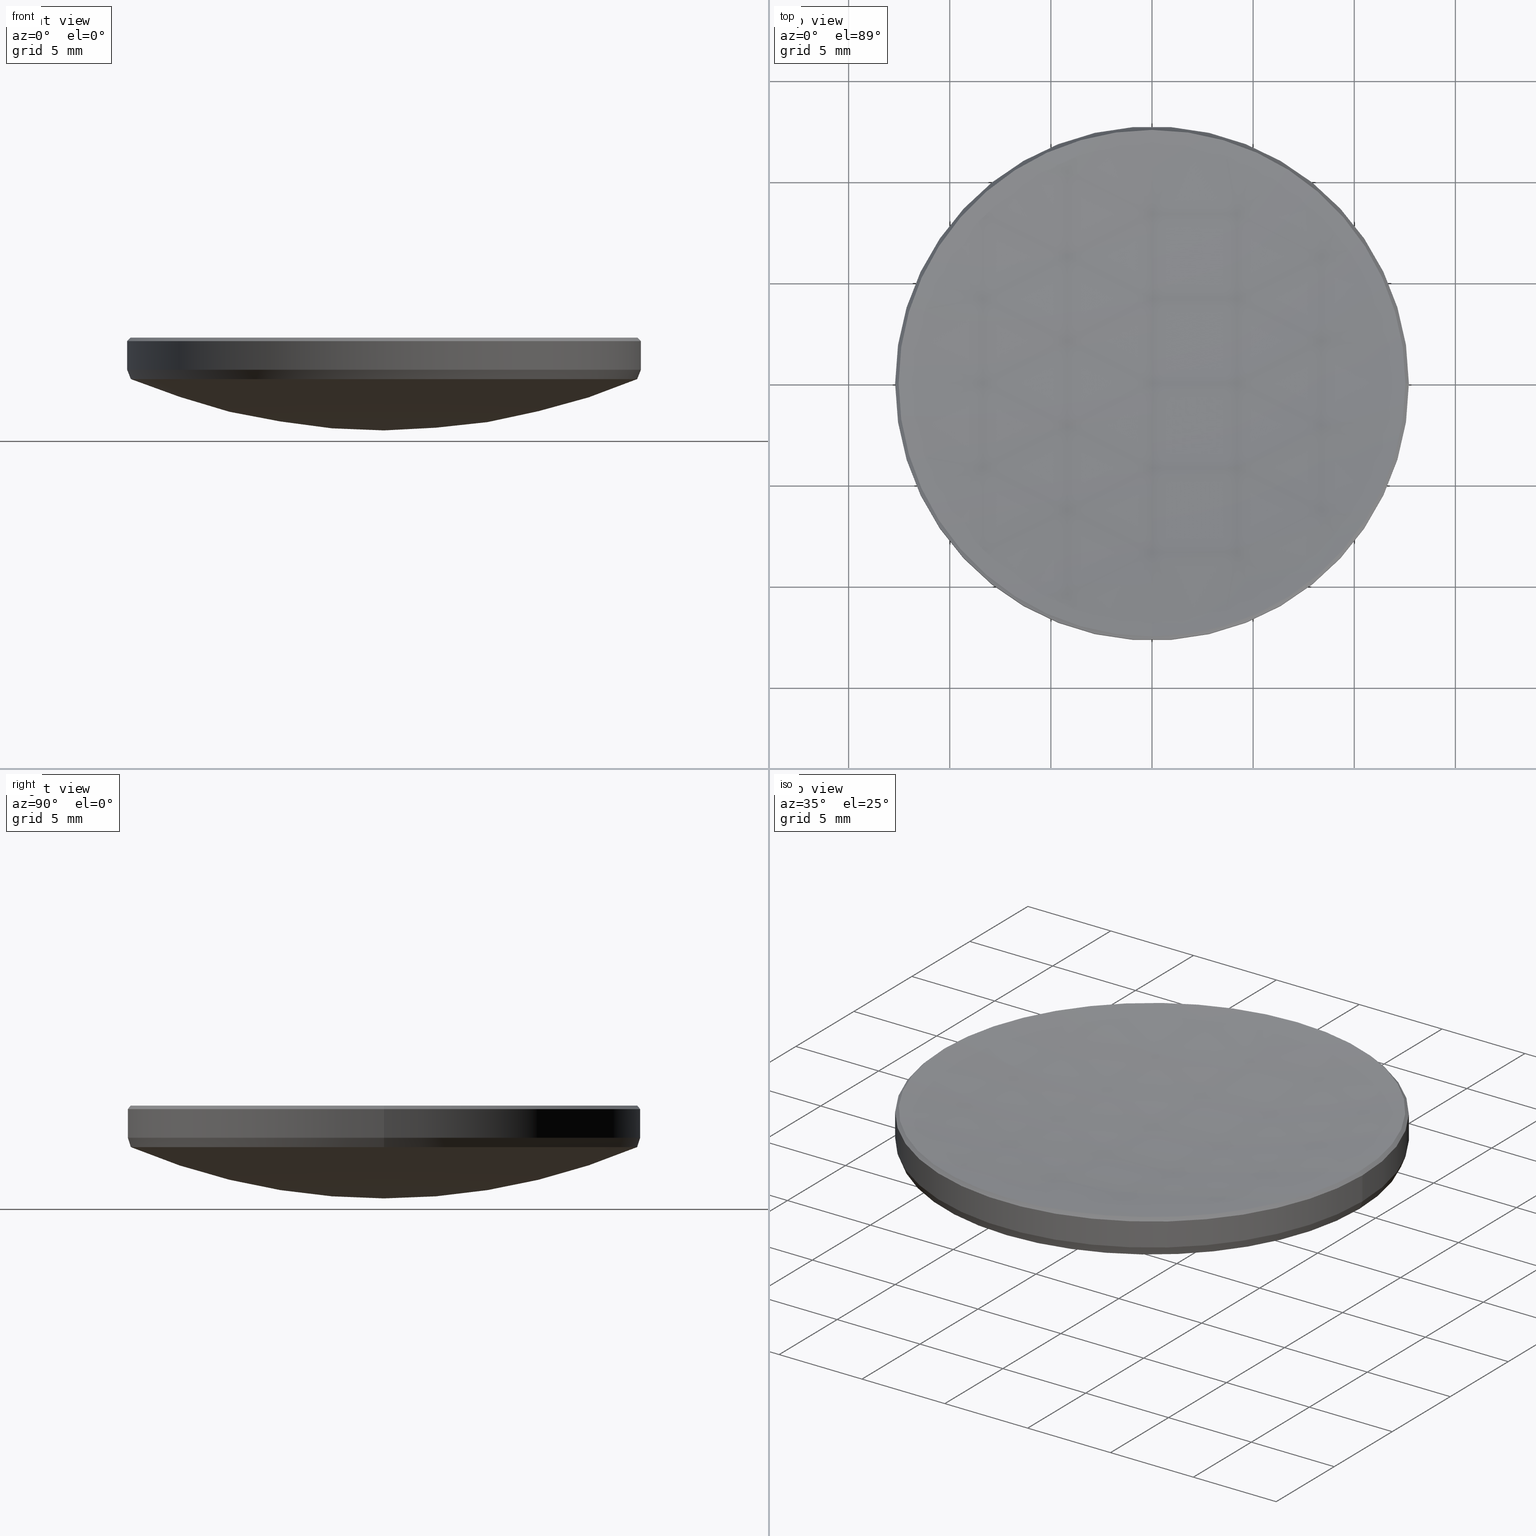
[diagram: canonical four-view strip — front | top / right | iso, engineering-drawing reading convention]
A machine part, canonical four-view strip (front | top / right | iso — engineering-drawing reading convention). The complete STEP part file that produces these views, byte-faithful:
ISO-10303-21;
HEADER;
FILE_DESCRIPTION (( 'STEP AP214' ),
    '1' );
FILE_NAME ('GLM1-025B-100-VIS.STEP',
    '2024-08-09T01:59:29',
    ( 'Windows User' ),
    ( 'P R C' ),
    'SwSTEP 2.0',
    'SolidWorks 2022',
    '' );
FILE_SCHEMA (( 'AUTOMOTIVE_DESIGN' ));
ENDSEC;

DATA;
#1 = PRESENTATION_STYLE_ASSIGNMENT (( #318 ) ) ;
#2 = CONICAL_SURFACE ( 'NONE', #119, 12.52687420083785597, 0.7853981633974733700 ) ;
#3 = ORIENTED_EDGE ( 'NONE', *, *, #284, .F. ) ;
#4 = DIRECTION ( 'NONE',  ( 0.000000000000000000, 0.000000000000000000, -1.000000000000000000 ) ) ;
#5 = EDGE_LOOP ( 'NONE', ( #286, #229, #84, #103 ) ) ;
#6 = FACE_OUTER_BOUND ( 'NONE', #126, .T. ) ;
#7 = ORIENTED_EDGE ( 'NONE', *, *, #240, .F. ) ;
#8 = AXIS2_PLACEMENT_3D ( 'NONE', #27, #166, #263 ) ;
#9 = DIRECTION ( 'NONE',  ( -0.000000000000000000, -0.000000000000000000, -1.000000000000000000 ) ) ;
#10 = CARTESIAN_POINT ( 'NONE',  ( 0.000000000000000000, 0.000000000000000000, 5.799999999999999822 ) ) ;
#11 = EDGE_CURVE ( 'NONE', #24, #77, #90, .T. ) ;
#12 = CIRCLE ( 'NONE', #194, 12.51660009051966682 ) ;
#13 = CARTESIAN_POINT ( 'NONE',  ( 0.000000000000000000, 12.52687420083781511, 5.973125799162120941 ) ) ;
#14 = DIRECTION ( 'NONE',  ( -0.000000000000000000, -0.000000000000000000, 1.000000000000000000 ) ) ;
#15 = ORIENTED_EDGE ( 'NONE', *, *, #195, .T. ) ;
#16 = COLOUR_RGB ( '',1.000000000000000000, 1.000000000000000000, 1.000000000000000000 ) ;
#17 = AXIS2_PLACEMENT_3D ( 'NONE', #66, #210, #193 ) ;
#18 = ORIENTED_EDGE ( 'NONE', *, *, #104, .T. ) ;
#19 = CARTESIAN_POINT ( 'NONE',  ( 0.000000000000000000, 0.000000000000000000, 3.921783238787050596 ) ) ;
#20 = SPHERICAL_SURFACE ( 'NONE', #118, 82.22999999999998977 ) ;
#21 =( NAMED_UNIT ( * ) PLANE_ANGLE_UNIT ( ) SI_UNIT ( $, .RADIAN. ) );
#22 = ORIENTED_EDGE ( 'NONE', *, *, #240, .T. ) ;
#23 = CARTESIAN_POINT ( 'NONE',  ( -12.69999999999999929, 1.555301434917138433E-15, 4.382064373895533826 ) ) ;
#24 = VERTEX_POINT ( 'NONE', #143 ) ;
#25 = DIRECTION ( 'NONE',  ( 1.000000000000000000, 0.000000000000000000, 0.000000000000000000 ) ) ;
#26 = ORIENTED_EDGE ( 'NONE', *, *, #272, .F. ) ;
#27 = CARTESIAN_POINT ( 'NONE',  ( 0.000000000000000000, 0.000000000000000000, 4.382064373895533826 ) ) ;
#28 = CIRCLE ( 'NONE', #213, 12.69999999999999929 ) ;
#29 = ORIENTED_EDGE ( 'NONE', *, *, #327, .F. ) ;
#30 = CARTESIAN_POINT ( 'NONE',  ( 0.000000000000000000, 0.000000000000000000, 3.921783238787050596 ) ) ;
#31 = ORIENTED_EDGE ( 'NONE', *, *, #172, .F. ) ;
#32 = AXIS2_PLACEMENT_3D ( 'NONE', #19, #198, #25 ) ;
#33 = CARTESIAN_POINT ( 'NONE',  ( -12.52687420083785419, 0.000000000000000000, 5.973125799162120941 ) ) ;
#34 = CARTESIAN_POINT ( 'NONE',  ( 0.000000000000000000, 5.035135314694341706E-15, 5.013356036047661668 ) ) ;
#35 = DIRECTION ( 'NONE',  ( 1.000000000000000000, 0.000000000000000000, 0.000000000000000000 ) ) ;
#36 = CIRCLE ( 'NONE', #219, 12.51660009051966682 ) ;
#37 = SHAPE_DEFINITION_REPRESENTATION ( #302, #314 ) ;
#38 = FACE_OUTER_BOUND ( 'NONE', #257, .T. ) ;
#39 = PRODUCT_RELATED_PRODUCT_CATEGORY ( 'part', '', ( #107 ) ) ;
#40 = FACE_OUTER_BOUND ( 'NONE', #159, .T. ) ;
#41 = EDGE_LOOP ( 'NONE', ( #82, #53, #59, #161 ) ) ;
#42 = STYLED_ITEM ( 'NONE', ( #250 ), #142 ) ;
#43 = CARTESIAN_POINT ( 'NONE',  ( -1.534099639337759046E-15, -12.52687420083781511, 5.973125799162120941 ) ) ;
#44 = EDGE_CURVE ( 'NONE', #106, #180, #171, .T. ) ;
#45 = FACE_OUTER_BOUND ( 'NONE', #5, .T. ) ;
#46 =( GEOMETRIC_REPRESENTATION_CONTEXT ( 3 ) GLOBAL_UNCERTAINTY_ASSIGNED_CONTEXT ( ( #246 ) ) GLOBAL_UNIT_ASSIGNED_CONTEXT ( ( #251, #21, #97 ) ) REPRESENTATION_CONTEXT ( 'NONE', 'WORKASPACE' ) );
#47 = DIRECTION ( 'NONE',  ( 0.000000000000000000, 0.000000000000000000, -1.000000000000000000 ) ) ;
#48 = EDGE_LOOP ( 'NONE', ( #154, #15, #18, #7 ) ) ;
#49 = EDGE_CURVE ( 'NONE', #77, #109, #28, .T. ) ;
#50 = CARTESIAN_POINT ( 'NONE',  ( 0.000000000000000000, 0.000000000000000000, 4.382064373895533826 ) ) ;
#51 = ORIENTED_EDGE ( 'NONE', *, *, #322, .T. ) ;
#52 = DIRECTION ( 'NONE',  ( 0.000000000000000000, 0.000000000000000000, -1.000000000000000000 ) ) ;
#53 = ORIENTED_EDGE ( 'NONE', *, *, #160, .T. ) ;
#54 = APPLICATION_PROTOCOL_DEFINITION ( 'draft international standard', 'automotive_design', 1998, #67 ) ;
#55 = VECTOR ( 'NONE', #150, 1000.000000000000114 ) ;
#56 = ORIENTED_EDGE ( 'NONE', *, *, #177, .F. ) ;
#57 = CARTESIAN_POINT ( 'NONE',  ( 0.000000000000000000, 12.51660009051965972, 3.921783238787048820 ) ) ;
#58 = ADVANCED_FACE ( 'NONE', ( #120 ), #2, .T. ) ;
#59 = ORIENTED_EDGE ( 'NONE', *, *, #249, .T. ) ;
#60 = CYLINDRICAL_SURFACE ( 'NONE', #188, 12.69999999999999929 ) ;
#61 = CIRCLE ( 'NONE', #256, 12.52687420083785419 ) ;
#62 = CARTESIAN_POINT ( 'NONE',  ( 0.000000000000000000, 0.000000000000000000, 87.24335603604764344 ) ) ;
#63 = AXIS2_PLACEMENT_3D ( 'NONE', #10, #4, #186 ) ;
#64 = AXIS2_PLACEMENT_3D ( 'NONE', #292, #68, #92 ) ;
#65 = ADVANCED_FACE ( 'NONE', ( #189 ), #271, .T. ) ;
#66 = CARTESIAN_POINT ( 'NONE',  ( 0.000000000000000000, 0.000000000000000000, 4.382064373895533826 ) ) ;
#67 = APPLICATION_CONTEXT ( 'automotive_design' ) ;
#68 = DIRECTION ( 'NONE',  ( -0.000000000000000000, -0.000000000000000000, -1.000000000000000000 ) ) ;
#69 = ORIENTED_EDGE ( 'NONE', *, *, #232, .F. ) ;
#70 = DIRECTION ( 'NONE',  ( -1.000000000000000000, 0.000000000000000000, 0.000000000000000000 ) ) ;
#71 = AXIS2_PLACEMENT_3D ( 'NONE', #247, #320, #270 ) ;
#72 = DIRECTION ( 'NONE',  ( 1.000000000000000000, -0.000000000000000000, 0.000000000000000000 ) ) ;
#73 = DIRECTION ( 'NONE',  ( 1.000000000000000000, 0.000000000000000000, 0.000000000000000000 ) ) ;
#74 = CIRCLE ( 'NONE', #133, 32.14000000000000057 ) ;
#75 = ORIENTED_EDGE ( 'NONE', *, *, #181, .T. ) ;
#76 = FILL_AREA_STYLE ('',( #328 ) ) ;
#77 = VERTEX_POINT ( 'NONE', #290 ) ;
#78 = VECTOR ( 'NONE', #178, 1000.000000000000114 ) ;
#79 = VECTOR ( 'NONE', #191, 1000.000000000000000 ) ;
#80 = ORIENTED_EDGE ( 'NONE', *, *, #289, .F. ) ;
#81 = DIRECTION ( 'NONE',  ( 0.000000000000000000, 0.000000000000000000, -1.000000000000000000 ) ) ;
#82 = ORIENTED_EDGE ( 'NONE', *, *, #221, .F. ) ;
#83 = VERTEX_POINT ( 'NONE', #273 ) ;
#84 = ORIENTED_EDGE ( 'NONE', *, *, #172, .T. ) ;
#85 = DIRECTION ( 'NONE',  ( -0.000000000000000000, -0.000000000000000000, -1.000000000000000000 ) ) ;
#86 = EDGE_LOOP ( 'NONE', ( #207, #29, #152, #51, #145 ) ) ;
#87 = CLOSED_SHELL ( 'NONE', ( #135, #214, #122, #65, #95, #117, #332, #238, #129, #58 ) ) ;
#88 = COLOUR_RGB ( '',1.000000000000000000, 1.000000000000000000, 1.000000000000000000 ) ;
#89 = CARTESIAN_POINT ( 'NONE',  ( 12.52687420083785597, 1.534099639337763779E-15, 5.973125799162135152 ) ) ;
#90 = LINE ( 'NONE', #89, #79 ) ;
#91 = AXIS2_PLACEMENT_3D ( 'NONE', #50, #201, #303 ) ;
#92 = DIRECTION ( 'NONE',  ( -1.000000000000000000, 0.000000000000000000, 0.000000000000000000 ) ) ;
#93 = CARTESIAN_POINT ( 'NONE',  ( 0.000000000000000000, 0.000000000000000000, 87.24335603604764344 ) ) ;
#94 = CARTESIAN_POINT ( 'NONE',  ( 0.000000000000000000, 0.000000000000000000, 3.921783238787050596 ) ) ;
#95 = ADVANCED_FACE ( 'NONE', ( #111 ), #60, .T. ) ;
#96 = SURFACE_STYLE_USAGE ( .BOTH. , #329 ) ;
#97 =( NAMED_UNIT ( * ) SI_UNIT ( $, .STERADIAN. ) SOLID_ANGLE_UNIT ( ) );
#98 = ORIENTED_EDGE ( 'NONE', *, *, #272, .T. ) ;
#99 = CARTESIAN_POINT ( 'NONE',  ( 0.000000000000000000, 0.000000000000000000, 87.24335603604764344 ) ) ;
#100 = ORIENTED_EDGE ( 'NONE', *, *, #232, .T. ) ;
#101 = VECTOR ( 'NONE', #285, 1000.000000000000000 ) ;
#102 =( LENGTH_UNIT ( ) NAMED_UNIT ( * ) SI_UNIT ( .MILLI., .METRE. ) );
#103 = ORIENTED_EDGE ( 'NONE', *, *, #110, .T. ) ;
#104 = EDGE_CURVE ( 'NONE', #182, #288, #260, .T. ) ;
#105 =( NAMED_UNIT ( * ) SI_UNIT ( $, .STERADIAN. ) SOLID_ANGLE_UNIT ( ) );
#106 = VERTEX_POINT ( 'NONE', #34 ) ;
#107 = PRODUCT ( 'GLM1-025B-100-VIS', 'GLM1-025B-100-VIS', '', ( #297 ) ) ;
#108 = DIRECTION ( 'NONE',  ( -1.000000000000000000, 0.000000000000000000, 0.000000000000000000 ) ) ;
#109 = VERTEX_POINT ( 'NONE', #324 ) ;
#110 = EDGE_CURVE ( 'NONE', #265, #180, #319, .T. ) ;
#111 = FACE_OUTER_BOUND ( 'NONE', #48, .T. ) ;
#112 = AXIS2_PLACEMENT_3D ( 'NONE', #326, #274, #277 ) ;
#113 = FACE_OUTER_BOUND ( 'NONE', #281, .T. ) ;
#114 = DIRECTION ( 'NONE',  ( 0.000000000000000000, 0.000000000000000000, 1.000000000000000000 ) ) ;
#115 = DIRECTION ( 'NONE',  ( 1.000000000000000000, 0.000000000000000000, 0.000000000000000000 ) ) ;
#116 = DIRECTION ( 'NONE',  ( 0.000000000000000000, 0.000000000000000000, -1.000000000000000000 ) ) ;
#117 = ADVANCED_FACE ( 'NONE', ( #217 ), #317, .T. ) ;
#118 = AXIS2_PLACEMENT_3D ( 'NONE', #99, #155, #233 ) ;
#119 = AXIS2_PLACEMENT_3D ( 'NONE', #316, #321, #169 ) ;
#120 = FACE_OUTER_BOUND ( 'NONE', #86, .T. ) ;
#121 = LINE ( 'NONE', #125, #239 ) ;
#122 = ADVANCED_FACE ( 'NONE', ( #40 ), #163, .F. ) ;
#123 = DIRECTION ( 'NONE',  ( 0.000000000000000000, 0.000000000000000000, -1.000000000000000000 ) ) ;
#124 = MECHANICAL_DESIGN_GEOMETRIC_PRESENTATION_REPRESENTATION (  '', ( #296 ), #315 ) ;
#125 = CARTESIAN_POINT ( 'NONE',  ( 12.69999999999999929, 1.555301434917138433E-15, 10.00000000000000000 ) ) ;
#126 = EDGE_LOOP ( 'NONE', ( #183, #262, #98, #75 ) ) ;
#127 = DIRECTION ( 'NONE',  ( -0.000000000000000000, -0.000000000000000000, 1.000000000000000000 ) ) ;
#128 = CARTESIAN_POINT ( 'NONE',  ( 0.000000000000000000, 0.000000000000000000, 3.921783238787050596 ) ) ;
#129 = ADVANCED_FACE ( 'NONE', ( #38 ), #147, .T. ) ;
#130 = LINE ( 'NONE', #179, #101 ) ;
#131 = VERTEX_POINT ( 'NONE', #13 ) ;
#132 = DIRECTION ( 'NONE',  ( -0.000000000000000000, -0.000000000000000000, 1.000000000000000000 ) ) ;
#133 = AXIS2_PLACEMENT_3D ( 'NONE', #282, #173, #196 ) ;
#134 = ORIENTED_EDGE ( 'NONE', *, *, #187, .F. ) ;
#135 = ADVANCED_FACE ( 'NONE', ( #113 ), #144, .T. ) ;
#136 = DIRECTION ( 'NONE',  ( 0.000000000000000000, 1.000000000000000000, 0.000000000000000000 ) ) ;
#137 = ORIENTED_EDGE ( 'NONE', *, *, #104, .F. ) ;
#138 = CONICAL_SURFACE ( 'NONE', #91, 12.69999999999999929, 0.3791711273704264085 ) ;
#139 = CARTESIAN_POINT ( 'NONE',  ( 0.000000000000000000, 0.000000000000000000, 0.000000000000000000 ) ) ;
#140 = PRESENTATION_LAYER_ASSIGNMENT (  '', '', ( #296 ) ) ;
#141 = CARTESIAN_POINT ( 'NONE',  ( 0.000000000000000000, 0.000000000000000000, 4.382064373895533826 ) ) ;
#142 = MANIFOLD_SOLID_BREP ( '����1', #87 ) ;
#143 = CARTESIAN_POINT ( 'NONE',  ( 12.52687420083785419, 1.544700537127451106E-15, 5.973125799162120941 ) ) ;
#144 = CONICAL_SURFACE ( 'NONE', #216, 12.52687420083785597, 0.7853981633974733700 ) ;
#145 = ORIENTED_EDGE ( 'NONE', *, *, #49, .F. ) ;
#146 = AXIS2_PLACEMENT_3D ( 'NONE', #153, #72, #225 ) ;
#147 = CONICAL_SURFACE ( 'NONE', #306, 12.69999999999999929, 0.3791711273704264085 ) ;
#148 = CARTESIAN_POINT ( 'NONE',  ( 12.51660009051966860, 0.000000000000000000, 3.921783238787050596 ) ) ;
#149 = UNCERTAINTY_MEASURE_WITH_UNIT (LENGTH_MEASURE( 1.000000000000000082E-05 ), #102, 'distance_accuracy_value', 'NONE');
#150 = DIRECTION ( 'NONE',  ( 0.3701505973859326448, 0.000000000000000000, 0.9289717623560131976 ) ) ;
#151 = CIRCLE ( 'NONE', #252, 82.22999999999998977 ) ;
#152 = ORIENTED_EDGE ( 'NONE', *, *, #110, .F. ) ;
#153 = CARTESIAN_POINT ( 'NONE',  ( 0.000000000000000000, 0.000000000000000000, 33.52438991749025377 ) ) ;
#154 = ORIENTED_EDGE ( 'NONE', *, *, #289, .T. ) ;
#155 = DIRECTION ( 'NONE',  ( -1.000000000000000000, 0.000000000000000000, 0.000000000000000000 ) ) ;
#156 = ORIENTED_EDGE ( 'NONE', *, *, #44, .T. ) ;
#157 = CIRCLE ( 'NONE', #112, 12.52687420083785419 ) ;
#158 = CARTESIAN_POINT ( 'NONE',  ( -12.69999999999999929, 0.000000000000000000, 10.00000000000000000 ) ) ;
#159 = EDGE_LOOP ( 'NONE', ( #218, #156, #202, #175 ) ) ;
#160 = EDGE_CURVE ( 'NONE', #224, #313, #74, .T. ) ;
#161 = ORIENTED_EDGE ( 'NONE', *, *, #167, .T. ) ;
#162 = SPHERICAL_SURFACE ( 'NONE', #192, 32.14000000000000057 ) ;
#163 = SPHERICAL_SURFACE ( 'NONE', #204, 82.22999999999998977 ) ;
#164 = CARTESIAN_POINT ( 'NONE',  ( 0.000000000000000000, 0.000000000000000000, 33.52438991749025377 ) ) ;
#165 = DIRECTION ( 'NONE',  ( -1.000000000000000000, 0.000000000000000000, 0.000000000000000000 ) ) ;
#166 = DIRECTION ( 'NONE',  ( -0.000000000000000000, -0.000000000000000000, 1.000000000000000000 ) ) ;
#167 = EDGE_CURVE ( 'NONE', #83, #307, #264, .T. ) ;
#168 = DIRECTION ( 'NONE',  ( -1.000000000000000000, 0.000000000000000000, 0.000000000000000000 ) ) ;
#169 = DIRECTION ( 'NONE',  ( -1.000000000000000000, 0.000000000000000000, 0.000000000000000000 ) ) ;
#170 = CARTESIAN_POINT ( 'NONE',  ( 0.000000000000000000, 0.000000000000000000, 10.00000000000000000 ) ) ;
#171 = CIRCLE ( 'NONE', #71, 82.22999999999998977 ) ;
#172 = EDGE_CURVE ( 'NONE', #131, #265, #61, .T. ) ;
#173 = DIRECTION ( 'NONE',  ( -1.000000000000000000, 1.224646799147353207E-16, 0.000000000000000000 ) ) ;
#174 = ORIENTED_EDGE ( 'NONE', *, *, #284, .T. ) ;
#175 = ORIENTED_EDGE ( 'NONE', *, *, #177, .T. ) ;
#176 = CIRCLE ( 'NONE', #146, 32.14000000000000057 ) ;
#177 = EDGE_CURVE ( 'NONE', #24, #131, #157, .T. ) ;
#178 = DIRECTION ( 'NONE',  ( -0.3701505973859326448, 4.533037442911630369E-17, 0.9289717623560131976 ) ) ;
#179 = CARTESIAN_POINT ( 'NONE',  ( -12.52687420083785597, 0.000000000000000000, 5.973125799162135152 ) ) ;
#180 = VERTEX_POINT ( 'NONE', #43 ) ;
#181 = EDGE_CURVE ( 'NONE', #227, #313, #12, .T. ) ;
#182 = VERTEX_POINT ( 'NONE', #305 ) ;
#183 = ORIENTED_EDGE ( 'NONE', *, *, #160, .F. ) ;
#184 = CARTESIAN_POINT ( 'NONE',  ( 0.000000000000000000, 0.000000000000000000, 5.973125799162120941 ) ) ;
#185 = CARTESIAN_POINT ( 'NONE',  ( 0.000000000000000000, 0.000000000000000000, 5.973125799162120941 ) ) ;
#186 = DIRECTION ( 'NONE',  ( 1.000000000000000000, 0.000000000000000000, 0.000000000000000000 ) ) ;
#187 = EDGE_CURVE ( 'NONE', #227, #182, #276, .T. ) ;
#188 = AXIS2_PLACEMENT_3D ( 'NONE', #170, #9, #168 ) ;
#189 = FACE_OUTER_BOUND ( 'NONE', #41, .T. ) ;
#190 = APPLICATION_PROTOCOL_DEFINITION ( 'draft international standard', 'automotive_design', 1998, #293 ) ;
#191 = DIRECTION ( 'NONE',  ( 0.7071067811865652253, 8.659560562355149795E-17, -0.7071067811865298092 ) ) ;
#192 = AXIS2_PLACEMENT_3D ( 'NONE', #164, #108, #136 ) ;
#193 = DIRECTION ( 'NONE',  ( -1.000000000000000000, 0.000000000000000000, 0.000000000000000000 ) ) ;
#194 = AXIS2_PLACEMENT_3D ( 'NONE', #94, #47, #253 ) ;
#195 = EDGE_CURVE ( 'NONE', #77, #182, #121, .T. ) ;
#196 = DIRECTION ( 'NONE',  ( -1.224646799147353207E-16, -1.000000000000000000, 0.000000000000000000 ) ) ;
#197 = UNCERTAINTY_MEASURE_WITH_UNIT (LENGTH_MEASURE( 1.000000000000000082E-05 ), #291, 'distance_accuracy_value', 'NONE');
#198 = DIRECTION ( 'NONE',  ( 0.000000000000000000, 0.000000000000000000, -1.000000000000000000 ) ) ;
#199 = FACE_OUTER_BOUND ( 'NONE', #330, .T. ) ;
#200 = ORIENTED_EDGE ( 'NONE', *, *, #195, .F. ) ;
#201 = DIRECTION ( 'NONE',  ( -0.000000000000000000, -0.000000000000000000, 1.000000000000000000 ) ) ;
#202 = ORIENTED_EDGE ( 'NONE', *, *, #327, .T. ) ;
#203 = CIRCLE ( 'NONE', #63, 12.69999999999999929 ) ;
#204 = AXIS2_PLACEMENT_3D ( 'NONE', #62, #165, #267 ) ;
#205 = EDGE_LOOP ( 'NONE', ( #200, #278, #22, #174 ) ) ;
#206 = FILL_AREA_STYLE_COLOUR ( '', #16 ) ;
#207 = ORIENTED_EDGE ( 'NONE', *, *, #11, .F. ) ;
#208 = ORIENTED_EDGE ( 'NONE', *, *, #249, .F. ) ;
#209 = SURFACE_STYLE_FILL_AREA ( #235 ) ;
#210 = DIRECTION ( 'NONE',  ( -0.000000000000000000, -0.000000000000000000, 1.000000000000000000 ) ) ;
#211 = CARTESIAN_POINT ( 'NONE',  ( -1.532841423706237562E-15, -12.51660009051965972, 3.921783238787048820 ) ) ;
#212 = EDGE_CURVE ( 'NONE', #106, #131, #151, .T. ) ;
#213 = AXIS2_PLACEMENT_3D ( 'NONE', #243, #116, #300 ) ;
#214 = ADVANCED_FACE ( 'NONE', ( #199 ), #138, .T. ) ;
#215 = CARTESIAN_POINT ( 'NONE',  ( 0.000000000000000000, 0.000000000000000000, 5.973125799162135152 ) ) ;
#216 = AXIS2_PLACEMENT_3D ( 'NONE', #215, #123, #70 ) ;
#217 = FACE_OUTER_BOUND ( 'NONE', #205, .T. ) ;
#218 = ORIENTED_EDGE ( 'NONE', *, *, #212, .F. ) ;
#219 = AXIS2_PLACEMENT_3D ( 'NONE', #128, #258, #230 ) ;
#220 = SURFACE_STYLE_FILL_AREA ( #76 ) ;
#221 = EDGE_CURVE ( 'NONE', #224, #307, #176, .T. ) ;
#222 = PRODUCT_DEFINITION_FORMATION_WITH_SPECIFIED_SOURCE ( '�κ�', '', #107, .NOT_KNOWN. ) ;
#223 = DIRECTION ( 'NONE',  ( -0.000000000000000000, -0.000000000000000000, -1.000000000000000000 ) ) ;
#224 = VERTEX_POINT ( 'NONE', #254 ) ;
#225 = DIRECTION ( 'NONE',  ( 0.000000000000000000, 0.000000000000000000, -1.000000000000000000 ) ) ;
#226 = PRODUCT_DEFINITION_CONTEXT ( 'detailed design', #293, 'design' ) ;
#227 = VERTEX_POINT ( 'NONE', #148 ) ;
#228 =( NAMED_UNIT ( * ) PLANE_ANGLE_UNIT ( ) SI_UNIT ( $, .RADIAN. ) );
#229 = ORIENTED_EDGE ( 'NONE', *, *, #212, .T. ) ;
#230 = DIRECTION ( 'NONE',  ( 1.000000000000000000, 0.000000000000000000, 0.000000000000000000 ) ) ;
#231 = ORIENTED_EDGE ( 'NONE', *, *, #181, .F. ) ;
#232 = EDGE_CURVE ( 'NONE', #83, #288, #308, .T. ) ;
#233 = DIRECTION ( 'NONE',  ( 0.000000000000000000, 1.000000000000000000, 0.000000000000000000 ) ) ;
#234 = MECHANICAL_DESIGN_GEOMETRIC_PRESENTATION_REPRESENTATION (  '', ( #42 ), #46 ) ;
#235 = FILL_AREA_STYLE ('',( #206 ) ) ;
#236 = DIRECTION ( 'NONE',  ( 0.000000000000000000, 1.000000000000000000, 0.000000000000000000 ) ) ;
#237 = SURFACE_SIDE_STYLE ('',( #209 ) ) ;
#238 = ADVANCED_FACE ( 'NONE', ( #45 ), #20, .F. ) ;
#239 = VECTOR ( 'NONE', #223, 1000.000000000000000 ) ;
#240 = EDGE_CURVE ( 'NONE', #109, #288, #331, .T. ) ;
#241 = AXIS2_PLACEMENT_3D ( 'NONE', #139, #114, #269 ) ;
#242 = DIRECTION ( 'NONE',  ( 1.000000000000000000, 0.000000000000000000, 0.000000000000000000 ) ) ;
#243 = CARTESIAN_POINT ( 'NONE',  ( 0.000000000000000000, 0.000000000000000000, 5.799999999999999822 ) ) ;
#244 = PRESENTATION_LAYER_ASSIGNMENT (  '', '', ( #42 ) ) ;
#245 = CARTESIAN_POINT ( 'NONE',  ( 0.000000000000000000, 0.000000000000000000, 33.52438991749025377 ) ) ;
#246 = UNCERTAINTY_MEASURE_WITH_UNIT (LENGTH_MEASURE( 1.000000000000000082E-05 ), #251, 'distance_accuracy_value', 'NONE');
#247 = CARTESIAN_POINT ( 'NONE',  ( 0.000000000000000000, 0.000000000000000000, 87.24335603604764344 ) ) ;
#248 = AXIS2_PLACEMENT_3D ( 'NONE', #30, #81, #35 ) ;
#249 = EDGE_CURVE ( 'NONE', #313, #83, #36, .T. ) ;
#250 = PRESENTATION_STYLE_ASSIGNMENT (( #96 ) ) ;
#251 =( LENGTH_UNIT ( ) NAMED_UNIT ( * ) SI_UNIT ( .MILLI., .METRE. ) );
#252 = AXIS2_PLACEMENT_3D ( 'NONE', #93, #73, #52 ) ;
#253 = DIRECTION ( 'NONE',  ( 1.000000000000000000, 0.000000000000000000, 0.000000000000000000 ) ) ;
#254 = CARTESIAN_POINT ( 'NONE',  ( 0.000000000000000000, 1.968007406229796560E-15, 1.384389917490250088 ) ) ;
#255 = ORIENTED_EDGE ( 'NONE', *, *, #167, .F. ) ;
#256 = AXIS2_PLACEMENT_3D ( 'NONE', #279, #127, #325 ) ;
#257 = EDGE_LOOP ( 'NONE', ( #69, #208, #231, #311, #3 ) ) ;
#258 = DIRECTION ( 'NONE',  ( 0.000000000000000000, 0.000000000000000000, -1.000000000000000000 ) ) ;
#259 = ORIENTED_EDGE ( 'NONE', *, *, #322, .F. ) ;
#260 = CIRCLE ( 'NONE', #17, 12.69999999999999929 ) ;
#261 = CARTESIAN_POINT ( 'NONE',  ( -12.69999999999999929, 0.000000000000000000, 4.382064373895533826 ) ) ;
#262 = ORIENTED_EDGE ( 'NONE', *, *, #221, .T. ) ;
#263 = DIRECTION ( 'NONE',  ( -1.000000000000000000, 0.000000000000000000, 0.000000000000000000 ) ) ;
#264 = CIRCLE ( 'NONE', #32, 12.51660009051966682 ) ;
#265 = VERTEX_POINT ( 'NONE', #33 ) ;
#266 = CIRCLE ( 'NONE', #248, 12.51660009051966682 ) ;
#267 = DIRECTION ( 'NONE',  ( 0.000000000000000000, 1.000000000000000000, 0.000000000000000000 ) ) ;
#268 = PRODUCT_DEFINITION ( 'δ֪', '', #222, #226 ) ;
#269 = DIRECTION ( 'NONE',  ( 1.000000000000000000, 0.000000000000000000, 0.000000000000000000 ) ) ;
#270 = DIRECTION ( 'NONE',  ( -1.224646799147353207E-16, -1.000000000000000000, 0.000000000000000000 ) ) ;
#271 = SPHERICAL_SURFACE ( 'NONE', #275, 32.14000000000000057 ) ;
#272 = EDGE_CURVE ( 'NONE', #307, #227, #266, .T. ) ;
#273 = CARTESIAN_POINT ( 'NONE',  ( -12.51660009051966860, 1.544071429311688688E-15, 3.921783238787050596 ) ) ;
#274 = DIRECTION ( 'NONE',  ( -0.000000000000000000, -0.000000000000000000, 1.000000000000000000 ) ) ;
#275 = AXIS2_PLACEMENT_3D ( 'NONE', #245, #298, #236 ) ;
#276 = LINE ( 'NONE', #304, #55 ) ;
#277 = DIRECTION ( 'NONE',  ( 1.000000000000000000, 0.000000000000000000, 0.000000000000000000 ) ) ;
#278 = ORIENTED_EDGE ( 'NONE', *, *, #49, .T. ) ;
#279 = CARTESIAN_POINT ( 'NONE',  ( 0.000000000000000000, 0.000000000000000000, 5.973125799162120941 ) ) ;
#280 = CIRCLE ( 'NONE', #8, 12.69999999999999929 ) ;
#281 = EDGE_LOOP ( 'NONE', ( #56, #283, #80, #259, #31 ) ) ;
#282 = CARTESIAN_POINT ( 'NONE',  ( 0.000000000000000000, 0.000000000000000000, 33.52438991749025377 ) ) ;
#283 = ORIENTED_EDGE ( 'NONE', *, *, #11, .T. ) ;
#284 = EDGE_CURVE ( 'NONE', #288, #182, #280, .T. ) ;
#285 = DIRECTION ( 'NONE',  ( -0.7071067811865652253, 0.000000000000000000, -0.7071067811865298092 ) ) ;
#286 = ORIENTED_EDGE ( 'NONE', *, *, #44, .F. ) ;
#287 =( NAMED_UNIT ( * ) PLANE_ANGLE_UNIT ( ) SI_UNIT ( $, .RADIAN. ) );
#288 = VERTEX_POINT ( 'NONE', #261 ) ;
#289 = EDGE_CURVE ( 'NONE', #109, #77, #203, .T. ) ;
#290 = CARTESIAN_POINT ( 'NONE',  ( 12.69999999999999929, 1.555301434917138433E-15, 5.799999999999999822 ) ) ;
#291 =( LENGTH_UNIT ( ) NAMED_UNIT ( * ) SI_UNIT ( .MILLI., .METRE. ) );
#292 = CARTESIAN_POINT ( 'NONE',  ( 0.000000000000000000, 0.000000000000000000, 10.00000000000000000 ) ) ;
#293 = APPLICATION_CONTEXT ( 'automotive_design' ) ;
#294 =( NAMED_UNIT ( * ) SI_UNIT ( $, .STERADIAN. ) SOLID_ANGLE_UNIT ( ) );
#295 = CIRCLE ( 'NONE', #323, 12.52687420083785419 ) ;
#296 = STYLED_ITEM ( 'NONE', ( #1 ), #314 ) ;
#297 = PRODUCT_CONTEXT ( 'NONE', #67, 'mechanical' ) ;
#298 = DIRECTION ( 'NONE',  ( -1.000000000000000000, 0.000000000000000000, 0.000000000000000000 ) ) ;
#299 = VECTOR ( 'NONE', #85, 1000.000000000000000 ) ;
#300 = DIRECTION ( 'NONE',  ( 1.000000000000000000, 0.000000000000000000, 0.000000000000000000 ) ) ;
#301 = DIRECTION ( 'NONE',  ( -0.000000000000000000, -0.000000000000000000, 1.000000000000000000 ) ) ;
#302 = PRODUCT_DEFINITION_SHAPE ( 'NONE', 'NONE',  #268 ) ;
#303 = DIRECTION ( 'NONE',  ( 1.000000000000000000, 0.000000000000000000, 0.000000000000000000 ) ) ;
#304 = CARTESIAN_POINT ( 'NONE',  ( 12.69999999999999929, 0.000000000000000000, 4.382064373895533826 ) ) ;
#305 = CARTESIAN_POINT ( 'NONE',  ( 12.69999999999999929, 1.555301434917138433E-15, 4.382064373895533826 ) ) ;
#306 = AXIS2_PLACEMENT_3D ( 'NONE', #141, #301, #242 ) ;
#307 = VERTEX_POINT ( 'NONE', #57 ) ;
#308 = LINE ( 'NONE', #23, #78 ) ;
#309 =( GEOMETRIC_REPRESENTATION_CONTEXT ( 3 ) GLOBAL_UNCERTAINTY_ASSIGNED_CONTEXT ( ( #197 ) ) GLOBAL_UNIT_ASSIGNED_CONTEXT ( ( #291, #228, #105 ) ) REPRESENTATION_CONTEXT ( 'NONE', 'WORKASPACE' ) );
#310 = AXIS2_PLACEMENT_3D ( 'NONE', #185, #14, #115 ) ;
#311 = ORIENTED_EDGE ( 'NONE', *, *, #187, .T. ) ;
#312 = DIRECTION ( 'NONE',  ( 1.000000000000000000, 0.000000000000000000, 0.000000000000000000 ) ) ;
#313 = VERTEX_POINT ( 'NONE', #211 ) ;
#314 = ADVANCED_BREP_SHAPE_REPRESENTATION ( 'GLM1-025B-100-VIS', ( #142, #241 ), #309 ) ;
#315 =( GEOMETRIC_REPRESENTATION_CONTEXT ( 3 ) GLOBAL_UNCERTAINTY_ASSIGNED_CONTEXT ( ( #149 ) ) GLOBAL_UNIT_ASSIGNED_CONTEXT ( ( #102, #287, #294 ) ) REPRESENTATION_CONTEXT ( 'NONE', 'WORKASPACE' ) );
#316 = CARTESIAN_POINT ( 'NONE',  ( 0.000000000000000000, 0.000000000000000000, 5.973125799162135152 ) ) ;
#317 = CYLINDRICAL_SURFACE ( 'NONE', #64, 12.69999999999999929 ) ;
#318 = SURFACE_STYLE_USAGE ( .BOTH. , #237 ) ;
#319 = CIRCLE ( 'NONE', #310, 12.52687420083785419 ) ;
#320 = DIRECTION ( 'NONE',  ( -1.000000000000000000, 1.224646799147353207E-16, 0.000000000000000000 ) ) ;
#321 = DIRECTION ( 'NONE',  ( 0.000000000000000000, 0.000000000000000000, -1.000000000000000000 ) ) ;
#322 = EDGE_CURVE ( 'NONE', #265, #109, #130, .T. ) ;
#323 = AXIS2_PLACEMENT_3D ( 'NONE', #184, #132, #312 ) ;
#324 = CARTESIAN_POINT ( 'NONE',  ( -12.69999999999999929, 0.000000000000000000, 5.799999999999999822 ) ) ;
#325 = DIRECTION ( 'NONE',  ( 1.000000000000000000, 0.000000000000000000, 0.000000000000000000 ) ) ;
#326 = CARTESIAN_POINT ( 'NONE',  ( 0.000000000000000000, 0.000000000000000000, 5.973125799162120941 ) ) ;
#327 = EDGE_CURVE ( 'NONE', #180, #24, #295, .T. ) ;
#328 = FILL_AREA_STYLE_COLOUR ( '', #88 ) ;
#329 = SURFACE_SIDE_STYLE ('',( #220 ) ) ;
#330 = EDGE_LOOP ( 'NONE', ( #255, #100, #137, #134, #26 ) ) ;
#331 = LINE ( 'NONE', #158, #299 ) ;
#332 = ADVANCED_FACE ( 'NONE', ( #6 ), #162, .T. ) ;
ENDSEC;
END-ISO-10303-21;
